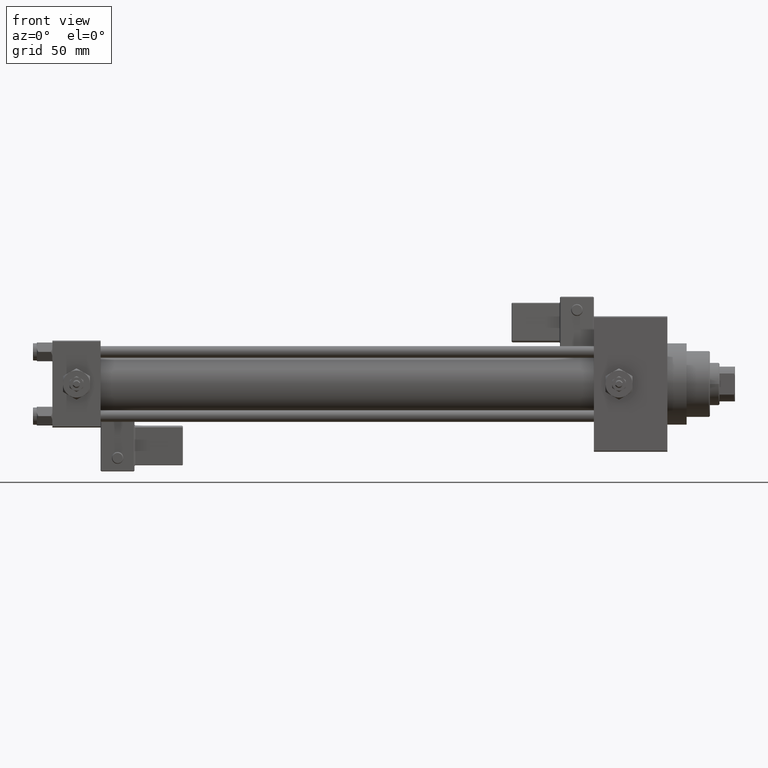
[diagram: clean part render]
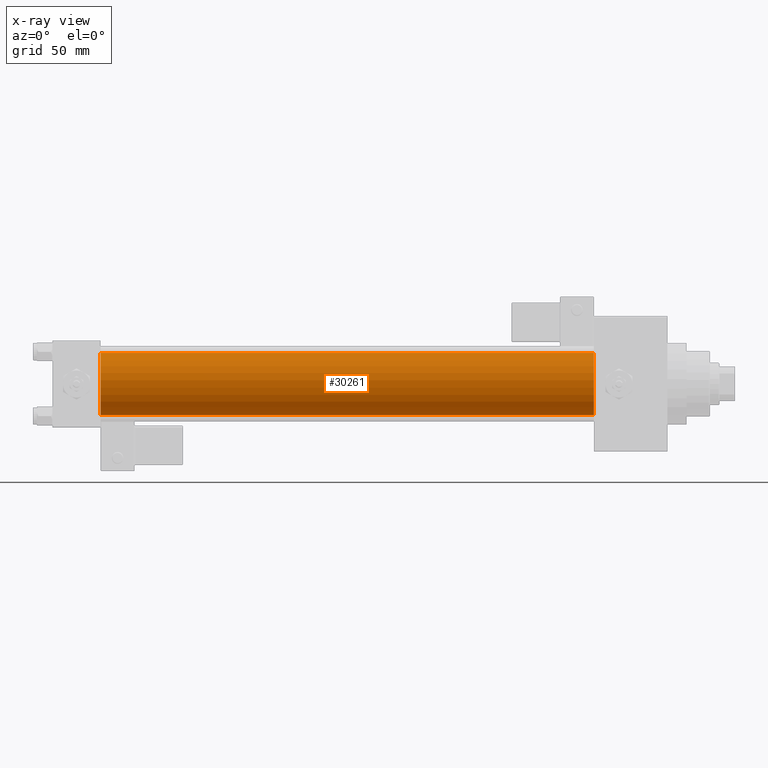
[diagram: x-ray — body ghosted, one internal face saturated and labeled with its STEP entity id]
A machine part, front view, then the same camera in x-ray: the body is ghosted and one INTERNAL B-rep face — a face not visible from any outside direction — is saturated and labeled: STEP entity #30261.
In plain terms, the highlighted cylindrical surface (edge-blend (fillet) strip) has radius 16 mm, axis along (-1, -0, -0).
Its self-contained STEP definition (entity closure, byte-faithful):
#1401 = AXIS2_PLACEMENT_3D ( 'NONE', #31470, #30975, #47060 ) ;
#1546 = CARTESIAN_POINT ( 'NONE',  ( 25.00000000000000000, -6.426503353294456087E-16, -16.00000000000000000 ) ) ;
#1752 = VERTEX_POINT ( 'NONE', #32549 ) ;
#2190 = CIRCLE ( 'NONE', #16295, 16.00000000000000000 ) ;
#3819 = AXIS2_PLACEMENT_3D ( 'NONE', #4542, #20118, #9443 ) ;
#4542 = CARTESIAN_POINT ( 'NONE',  ( 25.00000000000000000, -2.602085213965210642E-15, 0.000000000000000000 ) ) ;
#5786 = DIRECTION ( 'NONE',  ( 1.000000000000000000, 0.000000000000000000, 0.000000000000000000 ) ) ;
#9343 = CARTESIAN_POINT ( 'NONE',  ( 25.00000000000000000, -2.602085213965210642E-15, 16.00000000000000000 ) ) ;
#9443 = DIRECTION ( 'NONE',  ( 0.000000000000000000, 0.000000000000000000, -1.000000000000000000 ) ) ;
#10003 = VECTOR ( 'NONE', #34634, 1000.000000000000000 ) ;
#11674 = ORIENTED_EDGE ( 'NONE', *, *, #49662, .T. ) ;
#15296 = EDGE_CURVE ( 'NONE', #47461, #43045, #19562, .T. ) ;
#16295 = AXIS2_PLACEMENT_3D ( 'NONE', #17984, #5786, #42146 ) ;
#17035 = EDGE_CURVE ( 'NONE', #1752, #47461, #40855, .T. ) ;
#17984 = CARTESIAN_POINT ( 'NONE',  ( 280.0000000000000000, -2.602085213965210642E-15, 0.000000000000000000 ) ) ;
#19562 = CIRCLE ( 'NONE', #3819, 16.00000000000000000 ) ;
#20118 = DIRECTION ( 'NONE',  ( 1.000000000000000000, 0.000000000000000000, 0.000000000000000000 ) ) ;
#23790 = VECTOR ( 'NONE', #26495, 1000.000000000000000 ) ;
#25795 = CARTESIAN_POINT ( 'NONE',  ( 280.0000000000000000, -6.426503353294456087E-16, -16.00000000000000000 ) ) ;
#26495 = DIRECTION ( 'NONE',  ( -1.000000000000000000, -0.000000000000000000, -0.000000000000000000 ) ) ;
#27582 = FACE_OUTER_BOUND ( 'NONE', #30347, .T. ) ;
#27598 = ORIENTED_EDGE ( 'NONE', *, *, #29425, .T. ) ;
#27730 = ORIENTED_EDGE ( 'NONE', *, *, #17035, .F. ) ;
#28098 = CYLINDRICAL_SURFACE ( 'NONE', #1401, 16.00000000000000000 ) ;
#29425 = EDGE_CURVE ( 'NONE', #1752, #37366, #2190, .T. ) ;
#30261 = ADVANCED_FACE ( 'NONE', ( #27582 ), #28098, .F. ) ;
#30347 = EDGE_LOOP ( 'NONE', ( #27598, #11674, #36384, #27730 ) ) ;
#30975 = DIRECTION ( 'NONE',  ( -1.000000000000000000, -0.000000000000000000, -0.000000000000000000 ) ) ;
#31470 = CARTESIAN_POINT ( 'NONE',  ( 280.0000000000000000, -2.602085213965210642E-15, 0.000000000000000000 ) ) ;
#32549 = CARTESIAN_POINT ( 'NONE',  ( 280.0000000000000000, -2.602085213965210642E-15, 16.00000000000000000 ) ) ;
#34291 = CARTESIAN_POINT ( 'NONE',  ( 280.0000000000000000, -2.602085213965210642E-15, 16.00000000000000000 ) ) ;
#34634 = DIRECTION ( 'NONE',  ( -1.000000000000000000, -0.000000000000000000, -0.000000000000000000 ) ) ;
#36384 = ORIENTED_EDGE ( 'NONE', *, *, #15296, .F. ) ;
#37366 = VERTEX_POINT ( 'NONE', #41116 ) ;
#40855 = LINE ( 'NONE', #34291, #23790 ) ;
#41116 = CARTESIAN_POINT ( 'NONE',  ( 280.0000000000000000, -6.426503353294456087E-16, -16.00000000000000000 ) ) ;
#41649 = LINE ( 'NONE', #25795, #10003 ) ;
#42146 = DIRECTION ( 'NONE',  ( 0.000000000000000000, 0.000000000000000000, -1.000000000000000000 ) ) ;
#43045 = VERTEX_POINT ( 'NONE', #1546 ) ;
#47060 = DIRECTION ( 'NONE',  ( 0.000000000000000000, 0.000000000000000000, 1.000000000000000000 ) ) ;
#47461 = VERTEX_POINT ( 'NONE', #9343 ) ;
#49662 = EDGE_CURVE ( 'NONE', #37366, #43045, #41649, .T. ) ;